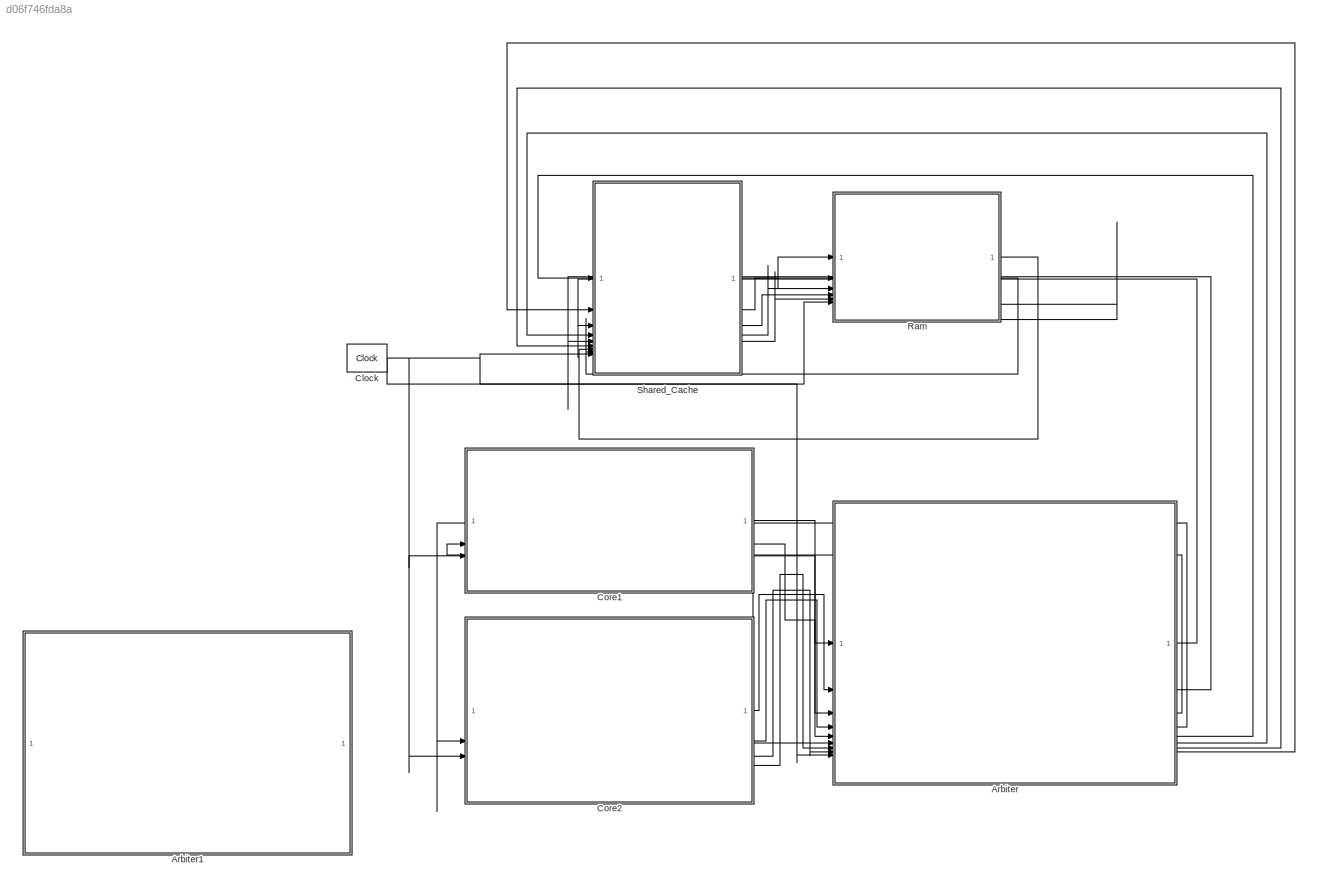
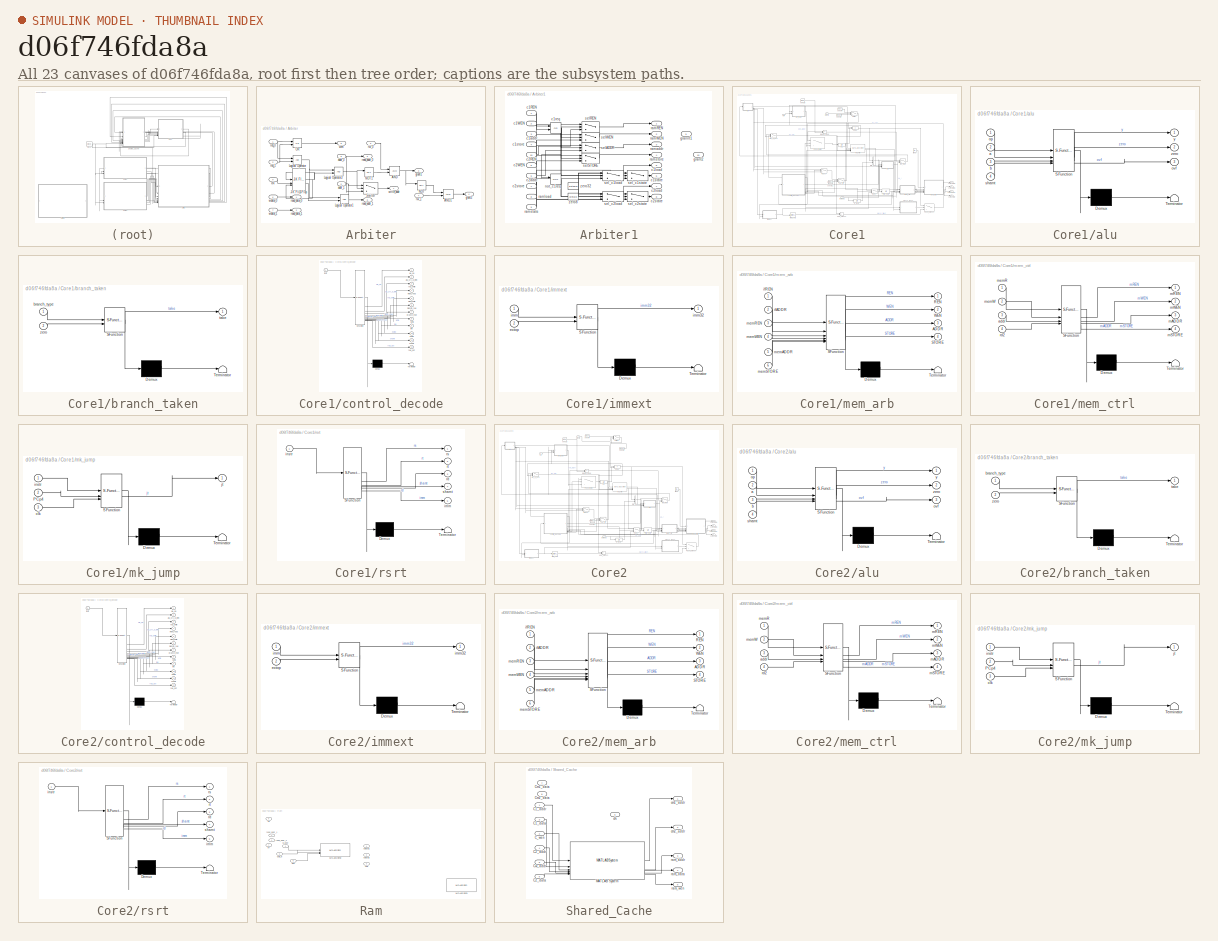
[diagram: thumbnail index - all 23 canvases of the model, root first then tree order]
MODEL slx_d06f746fda8a
KIND model
CONFIG AbsTol = auto
CONFIG EnableMultiTasking = off
CONFIG FixedStep = 1
CONFIG MaxStep = auto
CONFIG MinStep = auto
CONFIG RelTol = 1e-3
CONFIG SampleTimeConstraint = Unconstrained
CONFIG SolverName = FixedStepDiscrete
CONFIG StartTime = 0
CONFIG StopTime = 200
BLOCK [SubSystem] Arbiter
BLOCK [Logic] Arbiter/AND
  AllPortsSameDT = off
  IconShape = distinctive
  OutDataTypeStr = boolean
BLOCK [Logic] Arbiter/AND1
  AllPortsSameDT = off
  IconShape = distinctive
  OutDataTypeStr = boolean
BLOCK [Reference] Arbiter/J-K Flip-Flop  REF=simulink_extras/Flip Flops/J-K
Flip-Flop
  SourceBlock = simulink_extras/Flip Flops/J-K\nFlip-Flop
  SourceType = JKFlipFlop
BLOCK [Logic] Arbiter/Logical Operator
  AllPortsSameDT = off
  OutDataTypeStr = boolean
BLOCK [Logic] Arbiter/Logical Operator1
  AllPortsSameDT = off
  OutDataTypeStr = boolean
BLOCK [Logic] Arbiter/Logical Operator3
  AllPortsSameDT = off
  OutDataTypeStr = boolean
BLOCK [Logic] Arbiter/NOT
  AllPortsSameDT = off
  IconShape = distinctive
  Operator = NOT
  OutDataTypeStr = boolean
BLOCK [Logic] Arbiter/NOT1
  AllPortsSameDT = off
  IconShape = distinctive
  Operator = NOT
  OutDataTypeStr = boolean
BLOCK [Logic] Arbiter/OR
  AllPortsSameDT = off
  IconShape = distinctive
  Operator = OR
  OutDataTypeStr = boolean
BLOCK [Switch] Arbiter/Switch
  Criteria = u2 > Threshold
  InputSameDT = off
  SaturateOnIntegerOverflow = off
BLOCK [Inport] Arbiter/addr_0
  Port = 8
BLOCK [Inport] Arbiter/addr_1
  NameLocation = left
  Port = 5
BLOCK [Inport] Arbiter/clk
  Port = 9
BLOCK [Outport] Arbiter/grant1
  NameLocation = right
  Port = 3
BLOCK [Outport] Arbiter/grant2
  NameLocation = right
  Port = 4
BLOCK [Outport] Arbiter/read_addr_0
  Port = 5
BLOCK [Outport] Arbiter/read_addr_1
  Port = 6
BLOCK [Outport] Arbiter/read_data_0
BLOCK [Outport] Arbiter/read_data_1
  Port = 2
BLOCK [Inport] Arbiter/req_0
BLOCK [Inport] Arbiter/req_1
  Port = 2
BLOCK [Inport] Arbiter/rw_0
  Port = 3
BLOCK [Inport] Arbiter/rw_1
  Port = 4
BLOCK [Inport] Arbiter/wdata_0
  Port = 6
BLOCK [Inport] Arbiter/wdata_1
  Port = 7
BLOCK [Outport] Arbiter/wen
  Port = 8
BLOCK [Outport] Arbiter/write_addr
  Port = 7
BLOCK [SubSystem] Arbiter1
BLOCK [Inport] Arbiter1/c1REN
BLOCK [Inport] Arbiter1/c1WEN
  Port = 2
BLOCK [Inport] Arbiter1/c1addr
  Port = 3
BLOCK [Outport] Arbiter1/c1load
  Port = 5
BLOCK [Logic] Arbiter1/c1req
  AllPortsSameDT = off
  Operator = OR
  OutDataTypeStr = boolean
BLOCK [Outport] Arbiter1/c1state
  Port = 6
BLOCK [Inport] Arbiter1/c1store
  Port = 4
BLOCK [Inport] Arbiter1/c2REN
  Port = 10
BLOCK [Inport] Arbiter1/c2WEN
  Port = 5
BLOCK [Inport] Arbiter1/c2addr
  Port = 6
BLOCK [Outport] Arbiter1/c2load
  Port = 7
BLOCK [Outport] Arbiter1/c2state
  Port = 8
BLOCK [Inport] Arbiter1/c2store
  Port = 7
BLOCK [Outport] Arbiter1/grannt1
  Port = 9
BLOCK [Outport] Arbiter1/grant2
  Port = 10
BLOCK [Logic] Arbiter1/not_c1req
  AllPortsSameDT = off
  Operator = NOT
  OutDataTypeStr = boolean
BLOCK [Outport] Arbiter1/ramREN
BLOCK [Outport] Arbiter1/ramWEN
  Port = 2
BLOCK [Outport] Arbiter1/ramaddr
  Port = 3
BLOCK [Inport] Arbiter1/ramload
  Port = 8
BLOCK [Inport] Arbiter1/ramstate
  Port = 9
BLOCK [Outport] Arbiter1/ramstore
  Port = 4
BLOCK [Switch] Arbiter1/selADDR
  Criteria = u2 ~= 0
  InputSameDT = off
  SaturateOnIntegerOverflow = off
  Threshold = 0.5
BLOCK [Switch] Arbiter1/selREN
  Criteria = u2 ~= 0
  InputSameDT = off
  SaturateOnIntegerOverflow = off
  Threshold = 0.5
BLOCK [Switch] Arbiter1/selSTORE
  Criteria = u2 ~= 0
  InputSameDT = off
  SaturateOnIntegerOverflow = off
  Threshold = 0.5
BLOCK [Switch] Arbiter1/selWEN
  Criteria = u2 ~= 0
  InputSameDT = off
  SaturateOnIntegerOverflow = off
  Threshold = 0.5
BLOCK [Switch] Arbiter1/sel_c1load
  Criteria = u2 ~= 0
  InputSameDT = off
  SaturateOnIntegerOverflow = off
  Threshold = 0.5
BLOCK [Switch] Arbiter1/sel_c1state
  Criteria = u2 ~= 0
  InputSameDT = off
  SaturateOnIntegerOverflow = off
  Threshold = 0.5
BLOCK [Switch] Arbiter1/sel_c2load
  Criteria = u2 ~= 0
  InputSameDT = off
  SaturateOnIntegerOverflow = off
  Threshold = 0.5
BLOCK [Switch] Arbiter1/sel_c2state
  Criteria = u2 ~= 0
  InputSameDT = off
  SaturateOnIntegerOverflow = off
  Threshold = 0.5
BLOCK [Constant] Arbiter1/zero32
  Value = uint32(0)
BLOCK [Constant] Arbiter1/zero8
  Value = uint8(0)
BLOCK [Reference] Clock  REF=simulink_extras/Flip Flops/Clock
  SourceBlock = simulink_extras/Flip Flops/Clock
  SourceType = Digital clock
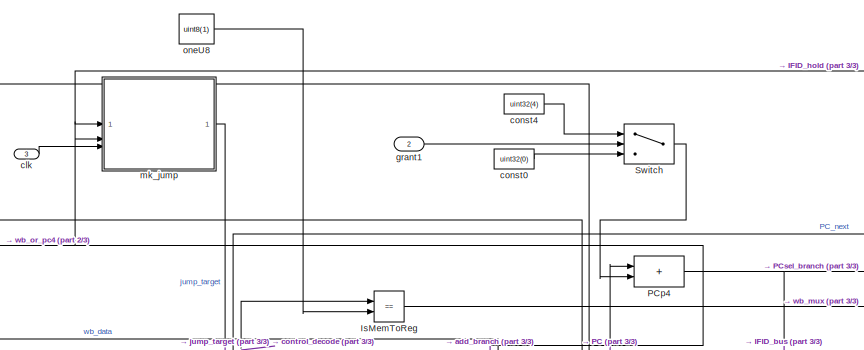
[diagram: Core1 - part 1/3, top center region]
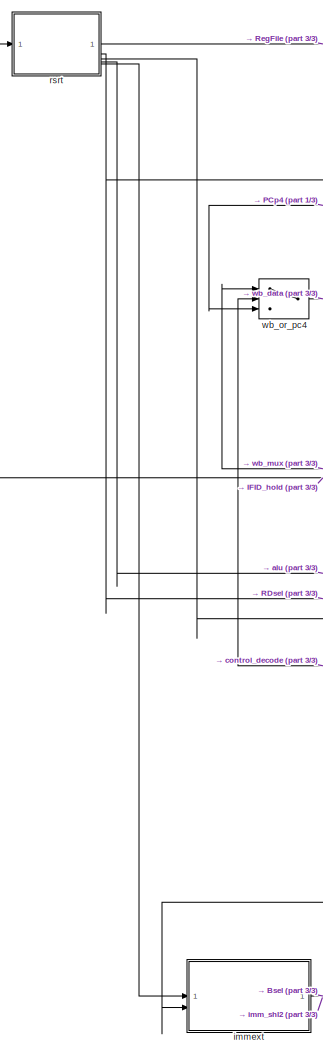
[diagram: Core1 - part 2/3, left side, full height]
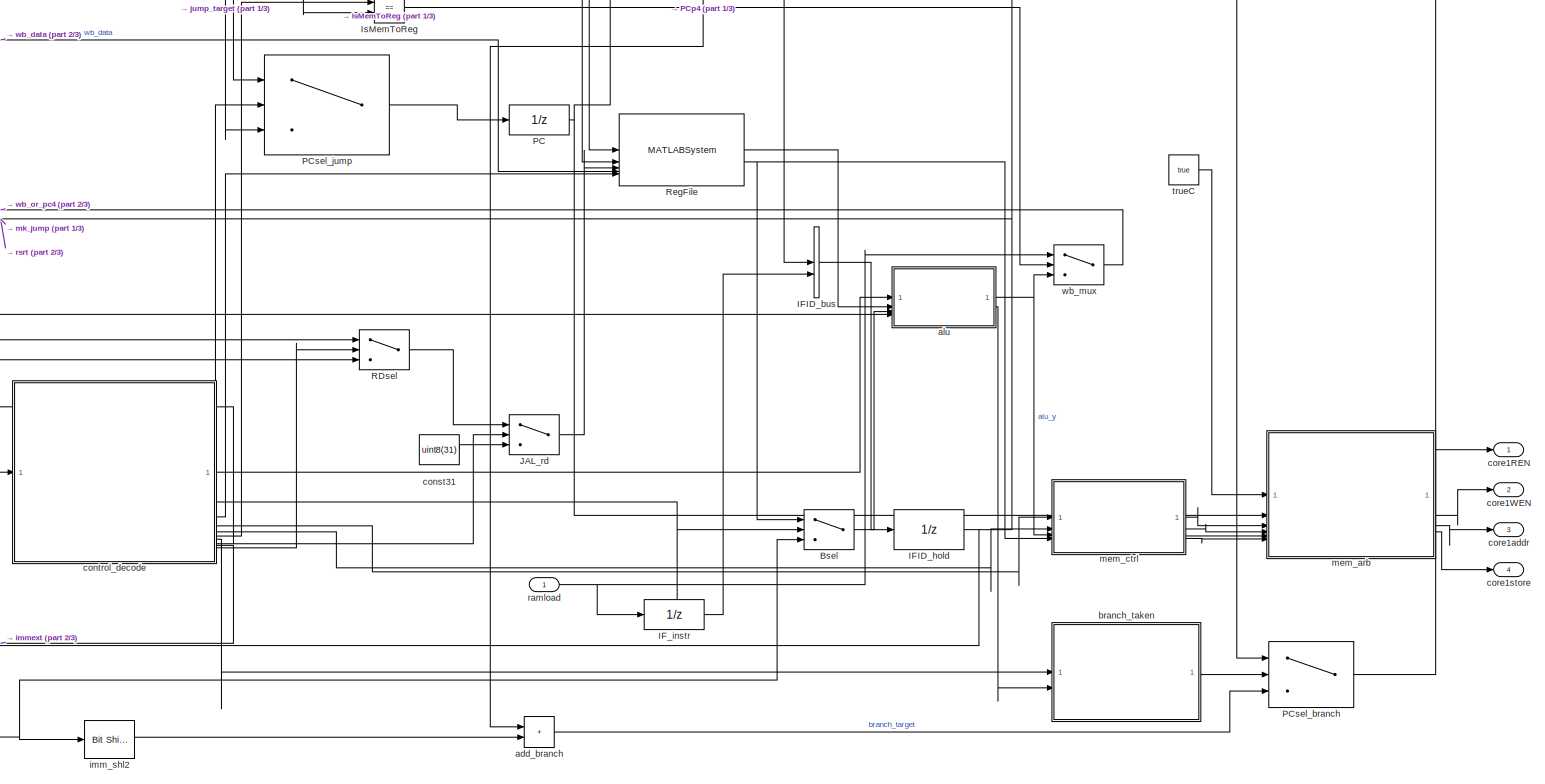
[diagram: Core1 - part 3/3, full width, middle band]
BLOCK [SubSystem] Core1
BLOCK [Switch] Core1/Bsel
  Criteria = u2 ~= 0
  InputSameDT = off
  SaturateOnIntegerOverflow = off
BLOCK [BusCreator] Core1/IFID_bus
  DisplayOption = bar
  InheritFromInputs = on
  Inputs = 2
BLOCK [UnitDelay] Core1/IFID_hold
  HasFrameUpgradeWarning = on
  SampleTime = -1
BLOCK [UnitDelay] Core1/IF_instr
  HasFrameUpgradeWarning = on
  SampleTime = -1
BLOCK [RelationalOperator] Core1/IsMemToReg
  InputSameDT = off
  Operator = ==
  OutDataTypeStr = boolean
  RndMeth = Simplest
BLOCK [Switch] Core1/JAL_rd
  Criteria = u2 ~= 0
  InputSameDT = off
  SaturateOnIntegerOverflow = off
BLOCK [UnitDelay] Core1/PC
  HasFrameUpgradeWarning = on
  SampleTime = -1
BLOCK [Sum] Core1/PCp4
  IconShape = rectangular
BLOCK [Switch] Core1/PCsel_branch
  Criteria = u2 ~= 0
  InputSameDT = off
  SaturateOnIntegerOverflow = off
BLOCK [Switch] Core1/PCsel_jump
  Criteria = u2 ~= 0
  InputSameDT = off
  SaturateOnIntegerOverflow = off
BLOCK [Switch] Core1/RDsel
  Criteria = u2 ~= 0
  InputSameDT = off
  SaturateOnIntegerOverflow = off
BLOCK [MATLABSystem] Core1/RegFile
  MaskType = RegFileSys
  SimulateUsing = Code generation
  System = RegFileSys
BLOCK [Switch] Core1/Switch
  Criteria = u2 ~= 0
  InputSameDT = off
  SaturateOnIntegerOverflow = off
BLOCK [Sum] Core1/add_branch
  IconShape = rectangular
BLOCK [SubSystem] Core1/alu
  ErrorFcn = Stateflow.Translate.translate
  PermitHierarchicalResolution = ExplicitOnly
  SFBlockType = MATLAB Function
  TreatAsAtomicUnit = on
BLOCK [Demux] Core1/alu/ Demux 
  Outputs = 1
BLOCK [S-Function] Core1/alu/ SFunction 
  EnableBusSupport = off
  FunctionName = sf_sfun
  PortCounts = [4 4]
  SFcnIsStateOwnerBlock = off
  SFunctionDeploymentMode = off
  Tag = Stateflow S-Function 1
BLOCK [Terminator] Core1/alu/ Terminator 
BLOCK [Inport] Core1/alu/a
  Port = 2
BLOCK [Inport] Core1/alu/b
  Port = 3
BLOCK [Inport] Core1/alu/op
BLOCK [Outport] Core1/alu/ovf
  Port = 3
BLOCK [Inport] Core1/alu/shamt
  Port = 4
BLOCK [Outport] Core1/alu/y
BLOCK [Outport] Core1/alu/zero
  Port = 2
BLOCK [SubSystem] Core1/branch_taken
  ErrorFcn = Stateflow.Translate.translate
  PermitHierarchicalResolution = ExplicitOnly
  SFBlockType = MATLAB Function
  TreatAsAtomicUnit = on
BLOCK [Demux] Core1/branch_taken/ Demux 
  Outputs = 1
BLOCK [S-Function] Core1/branch_taken/ SFunction 
  EnableBusSupport = off
  FunctionName = sf_sfun
  PortCounts = [2 2]
  SFcnIsStateOwnerBlock = off
  SFunctionDeploymentMode = off
  Tag = Stateflow S-Function 7
BLOCK [Terminator] Core1/branch_taken/ Terminator 
BLOCK [Inport] Core1/branch_taken/branch_type
BLOCK [Outport] Core1/branch_taken/take
BLOCK [Inport] Core1/branch_taken/zero
  Port = 2
BLOCK [Inport] Core1/clk
  Port = 3
BLOCK [Constant] Core1/const0
  Value = uint32(0)
BLOCK [Constant] Core1/const31
  Value = uint8(31)
BLOCK [Constant] Core1/const4
  Value = uint32(4)
BLOCK [SubSystem] Core1/control_decode
  ErrorFcn = Stateflow.Translate.translate
  PermitHierarchicalResolution = ExplicitOnly
  SFBlockType = MATLAB Function
  TreatAsAtomicUnit = on
BLOCK [Demux] Core1/control_decode/ Demux 
  Outputs = 1
BLOCK [S-Function] Core1/control_decode/ SFunction 
  EnableBusSupport = off
  FunctionName = sf_sfun
  PortCounts = [1 13]
  SFcnIsStateOwnerBlock = off
  SFunctionDeploymentMode = off
  Tag = Stateflow S-Function 2
BLOCK [Terminator] Core1/control_decode/ Terminator 
BLOCK [Outport] Core1/control_decode/alu_op
BLOCK [Outport] Core1/control_decode/alu_src_b_imm
  Port = 2
BLOCK [Outport] Core1/control_decode/branch_type
  Port = 7
BLOCK [Outport] Core1/control_decode/extop
  Port = 10
BLOCK [Inport] Core1/control_decode/instr
BLOCK [Outport] Core1/control_decode/jump
  Port = 8
BLOCK [Outport] Core1/control_decode/link
  Port = 9
BLOCK [Outport] Core1/control_decode/mem_read
  Port = 4
BLOCK [Outport] Core1/control_decode/mem_to_reg
  Port = 6
BLOCK [Outport] Core1/control_decode/mem_write
  Port = 5
BLOCK [Outport] Core1/control_decode/reg_dst
  Port = 12
BLOCK [Outport] Core1/control_decode/reg_write
  Port = 3
BLOCK [Outport] Core1/control_decode/shamt
  Port = 11
BLOCK [Outport] Core1/core1REN
BLOCK [Outport] Core1/core1WEN
  Port = 2
BLOCK [Outport] Core1/core1addr
  Port = 3
BLOCK [Outport] Core1/core1store
  Port = 4
BLOCK [Inport] Core1/grant1
  Port = 2
BLOCK [Reference] Core1/imm_shl2  REF=hdlsllib/Logic and Bit
Operations/Bit Shift
  SourceBlock = hdlsllib/Logic and Bit\nOperations/Bit Shift
  SourceType = Bit Shift
BLOCK [SubSystem] Core1/immext
  ErrorFcn = Stateflow.Translate.translate
  PermitHierarchicalResolution = ExplicitOnly
  SFBlockType = MATLAB Function
  TreatAsAtomicUnit = on
BLOCK [Demux] Core1/immext/ Demux 
  Outputs = 1
BLOCK [S-Function] Core1/immext/ SFunction 
  EnableBusSupport = off
  FunctionName = sf_sfun
  PortCounts = [2 2]
  SFcnIsStateOwnerBlock = off
  SFunctionDeploymentMode = off
  Tag = Stateflow S-Function 4
BLOCK [Terminator] Core1/immext/ Terminator 
BLOCK [Inport] Core1/immext/extop
  Port = 2
BLOCK [Inport] Core1/immext/imm
BLOCK [Outport] Core1/immext/imm32
BLOCK [SubSystem] Core1/mem_arb
  ErrorFcn = Stateflow.Translate.translate
  PermitHierarchicalResolution = ExplicitOnly
  SFBlockType = MATLAB Function
  TreatAsAtomicUnit = on
BLOCK [Demux] Core1/mem_arb/ Demux 
  Outputs = 1
BLOCK [S-Function] Core1/mem_arb/ SFunction 
  EnableBusSupport = off
  FunctionName = sf_sfun
  PortCounts = [6 5]
  SFcnIsStateOwnerBlock = off
  SFunctionDeploymentMode = off
  Tag = Stateflow S-Function 6
BLOCK [Terminator] Core1/mem_arb/ Terminator 
BLOCK [Outport] Core1/mem_arb/ADDR
  Port = 3
BLOCK [Outport] Core1/mem_arb/REN
BLOCK [Outport] Core1/mem_arb/STORE
  Port = 4
BLOCK [Outport] Core1/mem_arb/WEN
  Port = 2
BLOCK [Inport] Core1/mem_arb/ifADDR
  Port = 2
BLOCK [Inport] Core1/mem_arb/ifREN
BLOCK [Inport] Core1/mem_arb/memADDR
  Port = 5
BLOCK [Inport] Core1/mem_arb/memREN
  Port = 3
BLOCK [Inport] Core1/mem_arb/memSTORE
  Port = 6
BLOCK [Inport] Core1/mem_arb/memWEN
  Port = 4
BLOCK [SubSystem] Core1/mem_ctrl
  ErrorFcn = Stateflow.Translate.translate
  PermitHierarchicalResolution = ExplicitOnly
  SFBlockType = MATLAB Function
  TreatAsAtomicUnit = on
BLOCK [Demux] Core1/mem_ctrl/ Demux 
  Outputs = 1
BLOCK [S-Function] Core1/mem_ctrl/ SFunction 
  EnableBusSupport = off
  FunctionName = sf_sfun
  PortCounts = [4 5]
  SFcnIsStateOwnerBlock = off
  SFunctionDeploymentMode = off
  Tag = Stateflow S-Function 5
BLOCK [Terminator] Core1/mem_ctrl/ Terminator 
BLOCK [Inport] Core1/mem_ctrl/addr
  Port = 3
BLOCK [Outport] Core1/mem_ctrl/mADDR
  Port = 3
BLOCK [Outport] Core1/mem_ctrl/mREN
BLOCK [Outport] Core1/mem_ctrl/mSTORE
  Port = 4
BLOCK [Outport] Core1/mem_ctrl/mWEN
  Port = 2
BLOCK [Inport] Core1/mem_ctrl/memR
BLOCK [Inport] Core1/mem_ctrl/memW
  Port = 2
BLOCK [Inport] Core1/mem_ctrl/rd2
  Port = 4
BLOCK [SubSystem] Core1/mk_jump
  ErrorFcn = Stateflow.Translate.translate
  PermitHierarchicalResolution = ExplicitOnly
  SFBlockType = MATLAB Function
  TreatAsAtomicUnit = on
BLOCK [Demux] Core1/mk_jump/ Demux 
  Outputs = 1
BLOCK [S-Function] Core1/mk_jump/ SFunction 
  EnableBusSupport = off
  FunctionName = sf_sfun
  PortCounts = [3 2]
  SFcnIsStateOwnerBlock = off
  SFunctionDeploymentMode = off
  Tag = Stateflow S-Function 8
BLOCK [Terminator] Core1/mk_jump/ Terminator 
BLOCK [Inport] Core1/mk_jump/PCp4
  Port = 2
BLOCK [Inport] Core1/mk_jump/clk
  Port = 3
BLOCK [Inport] Core1/mk_jump/instr
BLOCK [Outport] Core1/mk_jump/jt
BLOCK [Constant] Core1/oneU8
  Value = uint8(1)
BLOCK [Inport] Core1/ramload
BLOCK [SubSystem] Core1/rsrt
  ErrorFcn = Stateflow.Translate.translate
  PermitHierarchicalResolution = ExplicitOnly
  SFBlockType = MATLAB Function
  TreatAsAtomicUnit = on
BLOCK [Demux] Core1/rsrt/ Demux 
  Outputs = 1
BLOCK [S-Function] Core1/rsrt/ SFunction 
  EnableBusSupport = off
  FunctionName = sf_sfun
  PortCounts = [1 6]
  SFcnIsStateOwnerBlock = off
  SFunctionDeploymentMode = off
  Tag = Stateflow S-Function 3
BLOCK [Terminator] Core1/rsrt/ Terminator 
BLOCK [Outport] Core1/rsrt/imm
  Port = 5
BLOCK [Inport] Core1/rsrt/instr
BLOCK [Outport] Core1/rsrt/rd
  Port = 3
BLOCK [Outport] Core1/rsrt/rs
BLOCK [Outport] Core1/rsrt/rt
  Port = 2
BLOCK [Outport] Core1/rsrt/shamt
  Port = 4
BLOCK [Constant] Core1/trueC
  Value = true
BLOCK [Switch] Core1/wb_mux
  Criteria = u2 ~= 0
  InputSameDT = off
  SaturateOnIntegerOverflow = off
BLOCK [Switch] Core1/wb_or_pc4
  Criteria = u2 ~= 0
  InputSameDT = off
  SaturateOnIntegerOverflow = off
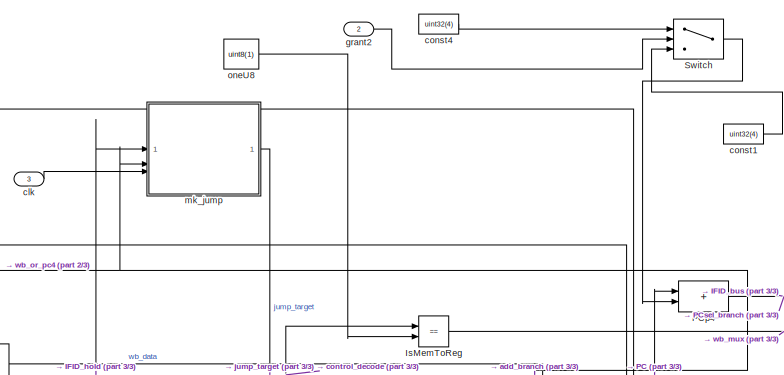
[diagram: Core2 - part 1/3, top center region]
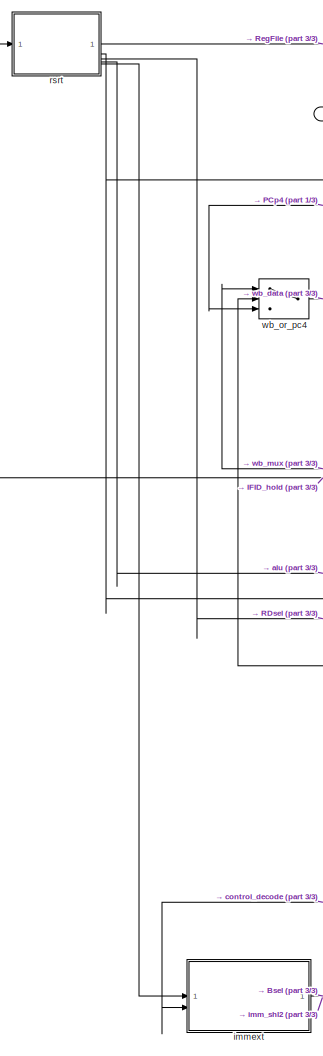
[diagram: Core2 - part 2/3, left side, full height]
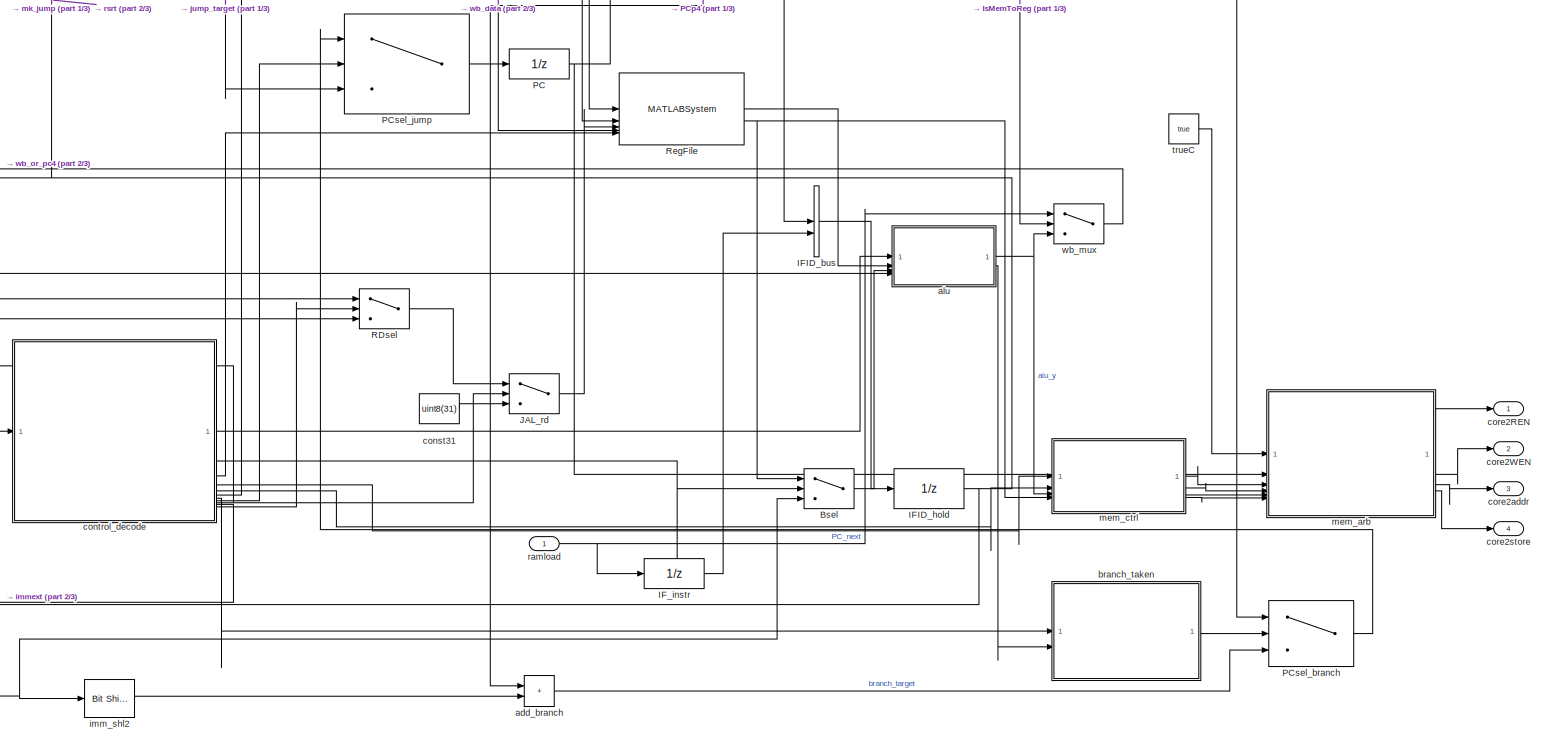
[diagram: Core2 - part 3/3, full width, middle band]
BLOCK [SubSystem] Core2
BLOCK [Switch] Core2/Bsel
  Criteria = u2 ~= 0
  InputSameDT = off
  SaturateOnIntegerOverflow = off
BLOCK [BusCreator] Core2/IFID_bus
  DisplayOption = bar
  InheritFromInputs = on
  Inputs = 2
BLOCK [UnitDelay] Core2/IFID_hold
  HasFrameUpgradeWarning = on
  SampleTime = -1
BLOCK [UnitDelay] Core2/IF_instr
  HasFrameUpgradeWarning = on
  SampleTime = -1
BLOCK [RelationalOperator] Core2/IsMemToReg
  InputSameDT = off
  Operator = ==
  OutDataTypeStr = boolean
  RndMeth = Simplest
BLOCK [Switch] Core2/JAL_rd
  Criteria = u2 ~= 0
  InputSameDT = off
  SaturateOnIntegerOverflow = off
BLOCK [UnitDelay] Core2/PC
  HasFrameUpgradeWarning = on
  SampleTime = -1
BLOCK [Sum] Core2/PCp4
  IconShape = rectangular
BLOCK [Switch] Core2/PCsel_branch
  Criteria = u2 ~= 0
  InputSameDT = off
  SaturateOnIntegerOverflow = off
BLOCK [Switch] Core2/PCsel_jump
  Criteria = u2 ~= 0
  InputSameDT = off
  SaturateOnIntegerOverflow = off
BLOCK [Switch] Core2/RDsel
  Criteria = u2 ~= 0
  InputSameDT = off
  SaturateOnIntegerOverflow = off
BLOCK [MATLABSystem] Core2/RegFile
  MaskType = RegFileSys
  SimulateUsing = Code generation
  System = RegFileSys
BLOCK [Switch] Core2/Switch
  Criteria = u2 > Threshold
  InputSameDT = off
  SaturateOnIntegerOverflow = off
BLOCK [Sum] Core2/add_branch
  IconShape = rectangular
BLOCK [SubSystem] Core2/alu
  ErrorFcn = Stateflow.Translate.translate
  PermitHierarchicalResolution = ExplicitOnly
  SFBlockType = MATLAB Function
  TreatAsAtomicUnit = on
BLOCK [Demux] Core2/alu/ Demux 
  Outputs = 1
BLOCK [S-Function] Core2/alu/ SFunction 
  EnableBusSupport = off
  FunctionName = sf_sfun
  PortCounts = [4 4]
  SFcnIsStateOwnerBlock = off
  SFunctionDeploymentMode = off
  Tag = Stateflow S-Function 9
BLOCK [Terminator] Core2/alu/ Terminator 
BLOCK [Inport] Core2/alu/a
  Port = 2
BLOCK [Inport] Core2/alu/b
  Port = 3
BLOCK [Inport] Core2/alu/op
BLOCK [Outport] Core2/alu/ovf
  Port = 3
BLOCK [Inport] Core2/alu/shamt
  Port = 4
BLOCK [Outport] Core2/alu/y
BLOCK [Outport] Core2/alu/zero
  Port = 2
BLOCK [SubSystem] Core2/branch_taken
  ErrorFcn = Stateflow.Translate.translate
  PermitHierarchicalResolution = ExplicitOnly
  SFBlockType = MATLAB Function
  TreatAsAtomicUnit = on
BLOCK [Demux] Core2/branch_taken/ Demux 
  Outputs = 1
BLOCK [S-Function] Core2/branch_taken/ SFunction 
  EnableBusSupport = off
  FunctionName = sf_sfun
  PortCounts = [2 2]
  SFcnIsStateOwnerBlock = off
  SFunctionDeploymentMode = off
  Tag = Stateflow S-Function 10
BLOCK [Terminator] Core2/branch_taken/ Terminator 
BLOCK [Inport] Core2/branch_taken/branch_type
BLOCK [Outport] Core2/branch_taken/take
BLOCK [Inport] Core2/branch_taken/zero
  Port = 2
BLOCK [Inport] Core2/clk
  Port = 3
BLOCK [Constant] Core2/const1
  Value = uint32(4)
BLOCK [Constant] Core2/const31
  Value = uint8(31)
BLOCK [Constant] Core2/const4
  Value = uint32(4)
BLOCK [SubSystem] Core2/control_decode
  ErrorFcn = Stateflow.Translate.translate
  PermitHierarchicalResolution = ExplicitOnly
  SFBlockType = MATLAB Function
  TreatAsAtomicUnit = on
BLOCK [Demux] Core2/control_decode/ Demux 
  Outputs = 1
BLOCK [S-Function] Core2/control_decode/ SFunction 
  EnableBusSupport = off
  FunctionName = sf_sfun
  PortCounts = [1 13]
  SFcnIsStateOwnerBlock = off
  SFunctionDeploymentMode = off
  Tag = Stateflow S-Function 11
BLOCK [Terminator] Core2/control_decode/ Terminator 
BLOCK [Outport] Core2/control_decode/alu_op
BLOCK [Outport] Core2/control_decode/alu_src_b_imm
  Port = 2
BLOCK [Outport] Core2/control_decode/branch_type
  Port = 7
BLOCK [Outport] Core2/control_decode/extop
  Port = 10
BLOCK [Inport] Core2/control_decode/instr
BLOCK [Outport] Core2/control_decode/jump
  Port = 8
BLOCK [Outport] Core2/control_decode/link
  Port = 9
BLOCK [Outport] Core2/control_decode/mem_read
  Port = 4
BLOCK [Outport] Core2/control_decode/mem_to_reg
  Port = 6
BLOCK [Outport] Core2/control_decode/mem_write
  Port = 5
BLOCK [Outport] Core2/control_decode/reg_dst
  Port = 12
BLOCK [Outport] Core2/control_decode/reg_write
  Port = 3
BLOCK [Outport] Core2/control_decode/shamt
  Port = 11
BLOCK [Outport] Core2/core2REN
BLOCK [Outport] Core2/core2WEN
  Port = 2
BLOCK [Outport] Core2/core2addr
  Port = 3
BLOCK [Outport] Core2/core2store
  Port = 4
BLOCK [Inport] Core2/grant2
  Port = 2
BLOCK [Reference] Core2/imm_shl2  REF=hdlsllib/Logic and Bit
Operations/Bit Shift
  SourceBlock = hdlsllib/Logic and Bit\nOperations/Bit Shift
  SourceType = Bit Shift
BLOCK [SubSystem] Core2/immext
  ErrorFcn = Stateflow.Translate.translate
  PermitHierarchicalResolution = ExplicitOnly
  SFBlockType = MATLAB Function
  TreatAsAtomicUnit = on
BLOCK [Demux] Core2/immext/ Demux 
  Outputs = 1
BLOCK [S-Function] Core2/immext/ SFunction 
  EnableBusSupport = off
  FunctionName = sf_sfun
  PortCounts = [2 2]
  SFcnIsStateOwnerBlock = off
  SFunctionDeploymentMode = off
  Tag = Stateflow S-Function 12
BLOCK [Terminator] Core2/immext/ Terminator 
BLOCK [Inport] Core2/immext/extop
  Port = 2
BLOCK [Inport] Core2/immext/imm
BLOCK [Outport] Core2/immext/imm32
BLOCK [SubSystem] Core2/mem_arb
  ErrorFcn = Stateflow.Translate.translate
  PermitHierarchicalResolution = ExplicitOnly
  SFBlockType = MATLAB Function
  TreatAsAtomicUnit = on
BLOCK [Demux] Core2/mem_arb/ Demux 
  Outputs = 1
BLOCK [S-Function] Core2/mem_arb/ SFunction 
  EnableBusSupport = off
  FunctionName = sf_sfun
  PortCounts = [6 5]
  SFcnIsStateOwnerBlock = off
  SFunctionDeploymentMode = off
  Tag = Stateflow S-Function 13
BLOCK [Terminator] Core2/mem_arb/ Terminator 
BLOCK [Outport] Core2/mem_arb/ADDR
  Port = 3
BLOCK [Outport] Core2/mem_arb/REN
BLOCK [Outport] Core2/mem_arb/STORE
  Port = 4
BLOCK [Outport] Core2/mem_arb/WEN
  Port = 2
BLOCK [Inport] Core2/mem_arb/ifADDR
  Port = 2
BLOCK [Inport] Core2/mem_arb/ifREN
BLOCK [Inport] Core2/mem_arb/memADDR
  Port = 5
BLOCK [Inport] Core2/mem_arb/memREN
  Port = 3
BLOCK [Inport] Core2/mem_arb/memSTORE
  Port = 6
BLOCK [Inport] Core2/mem_arb/memWEN
  Port = 4
BLOCK [SubSystem] Core2/mem_ctrl
  ErrorFcn = Stateflow.Translate.translate
  PermitHierarchicalResolution = ExplicitOnly
  SFBlockType = MATLAB Function
  TreatAsAtomicUnit = on
BLOCK [Demux] Core2/mem_ctrl/ Demux 
  Outputs = 1
BLOCK [S-Function] Core2/mem_ctrl/ SFunction 
  EnableBusSupport = off
  FunctionName = sf_sfun
  PortCounts = [4 5]
  SFcnIsStateOwnerBlock = off
  SFunctionDeploymentMode = off
  Tag = Stateflow S-Function 14
BLOCK [Terminator] Core2/mem_ctrl/ Terminator 
BLOCK [Inport] Core2/mem_ctrl/addr
  Port = 3
BLOCK [Outport] Core2/mem_ctrl/mADDR
  Port = 3
BLOCK [Outport] Core2/mem_ctrl/mREN
BLOCK [Outport] Core2/mem_ctrl/mSTORE
  Port = 4
BLOCK [Outport] Core2/mem_ctrl/mWEN
  Port = 2
BLOCK [Inport] Core2/mem_ctrl/memR
BLOCK [Inport] Core2/mem_ctrl/memW
  Port = 2
BLOCK [Inport] Core2/mem_ctrl/rd2
  Port = 4
BLOCK [SubSystem] Core2/mk_jump
  ErrorFcn = Stateflow.Translate.translate
  PermitHierarchicalResolution = ExplicitOnly
  SFBlockType = MATLAB Function
  TreatAsAtomicUnit = on
BLOCK [Demux] Core2/mk_jump/ Demux 
  Outputs = 1
BLOCK [S-Function] Core2/mk_jump/ SFunction 
  EnableBusSupport = off
  FunctionName = sf_sfun
  PortCounts = [3 2]
  SFcnIsStateOwnerBlock = off
  SFunctionDeploymentMode = off
  Tag = Stateflow S-Function 15
BLOCK [Terminator] Core2/mk_jump/ Terminator 
BLOCK [Inport] Core2/mk_jump/PCp4
  Port = 2
BLOCK [Inport] Core2/mk_jump/clk
  Port = 3
BLOCK [Inport] Core2/mk_jump/instr
BLOCK [Outport] Core2/mk_jump/jt
BLOCK [Constant] Core2/oneU8
  Value = uint8(1)
BLOCK [Inport] Core2/ramload
BLOCK [SubSystem] Core2/rsrt
  ErrorFcn = Stateflow.Translate.translate
  PermitHierarchicalResolution = ExplicitOnly
  SFBlockType = MATLAB Function
  TreatAsAtomicUnit = on
BLOCK [Demux] Core2/rsrt/ Demux 
  Outputs = 1
BLOCK [S-Function] Core2/rsrt/ SFunction 
  EnableBusSupport = off
  FunctionName = sf_sfun
  PortCounts = [1 6]
  SFcnIsStateOwnerBlock = off
  SFunctionDeploymentMode = off
  Tag = Stateflow S-Function 16
BLOCK [Terminator] Core2/rsrt/ Terminator 
BLOCK [Outport] Core2/rsrt/imm
  Port = 5
BLOCK [Inport] Core2/rsrt/instr
BLOCK [Outport] Core2/rsrt/rd
  Port = 3
BLOCK [Outport] Core2/rsrt/rs
BLOCK [Outport] Core2/rsrt/rt
  Port = 2
BLOCK [Outport] Core2/rsrt/shamt
  Port = 4
BLOCK [Constant] Core2/trueC
  Value = true
BLOCK [Switch] Core2/wb_mux
  Criteria = u2 ~= 0
  InputSameDT = off
  SaturateOnIntegerOverflow = off
BLOCK [Switch] Core2/wb_or_pc4
  Criteria = u2 ~= 0
  InputSameDT = off
  SaturateOnIntegerOverflow = off
BLOCK [SubSystem] Ram
  PortSchema = {"entries":[{"content":{"sides":[{"content":{"connectorIds":["In1","In2","In3","In4","In5","In6"]},"type":"ConnectorPlacement.EquallySpacedRectSide","uuid":"e4753198-88eb-4d8c-8163-319740d05159"},{"content":{"connectorIds":["Out1","In7","Out2"],"side":"RIGHT"},"type":"ConnectorPlacement.EquallySpacedRectSide","uuid":"9705e5dc-da62-4ef6-ad04-f47eaed09c48"},{"content":{"side":"TOP"},"type":"Connecto...<+415ch>
BLOCK [Inport] Ram/In7
  Port = 7
BLOCK [MATLABSystem] Ram/MATLAB System1
  MaskType = RAMSys
  Mem = zeros( 1024, 1, 'uint32' )
  SimulateUsing = Code generation
  System = RAMSys
BLOCK [MATLABSystem] Ram/MATLAB System2
  MaskType = RAMSys
  Mem = zeros( 1024, 1, 'uint32' )
  SimulateUsing = Code generation
  System = RAMSys
BLOCK [Outport] Ram/Out3
  Port = 3
BLOCK [Inport] Ram/clk
  Port = 6
BLOCK [Inport] Ram/data_in
  Port = 3
BLOCK [Outport] Ram/dataout 1
BLOCK [Outport] Ram/dataout 2
  Port = 2
BLOCK [Inport] Ram/read_addr_1
BLOCK [Inport] Ram/read_addr_2
  Port = 2
BLOCK [Inport] Ram/w_addr
  Port = 4
BLOCK [Inport] Ram/wen
  Port = 5
BLOCK [SubSystem] Shared_Cache
BLOCK [Inport] Shared_Cache/C1_addr
BLOCK [Inport] Shared_Cache/C1_data
  Port = 3
BLOCK [Inport] Shared_Cache/C2_addr
  Port = 4
BLOCK [Inport] Shared_Cache/C2_data
  Port = 5
BLOCK [Inport] Shared_Cache/C_wen
  Port = 2
BLOCK [Inport] Shared_Cache/Cm1_data
  Port = 7
BLOCK [Inport] Shared_Cache/Cm2_data
  Port = 8
BLOCK [Inport] Shared_Cache/Cw_addr
  Port = 6
BLOCK [MATLABSystem] Shared_Cache/MATLAB System
  CacheAddr = zeros( 64, 1, 'uint32' )
  CacheData = zeros( 64, 1, 'uint32' )
  Dirty = false( 64, 1 )
  MaskType = SharedCacheSys
  SimulateUsing = Code generation
  System = SharedCacheSys
  Valid = false( 64, 1 )
BLOCK [Inport] Shared_Cache/clk
  Port = 9
BLOCK [Outport] Shared_Cache/cm1_addr
BLOCK [Outport] Shared_Cache/cm2_addr
  Port = 2
BLOCK [Outport] Shared_Cache/ram_addr
  Port = 3
BLOCK [Outport] Shared_Cache/ram_data
  Port = 4
BLOCK [Outport] Shared_Cache/ram_wen
  Port = 5
LINE Arbiter/AND1:1 -> Arbiter/grant2:1
NET Arbiter/AND:1 -> Arbiter/NOT:1, Arbiter/grant1:1
NET Arbiter/J-K Flip-Flop:1 -> Arbiter/J-K Flip-Flop:1, Arbiter/J-K Flip-Flop:3, Arbiter/Logical Operator3:2
LINE Arbiter/J-K Flip-Flop:2 -> Arbiter/Logical Operator1:2
NET Arbiter/Logical Operator3:1 -> Arbiter/NOT1:1, Arbiter/Switch:2
NET Arbiter/Logical Operator:1 -> Arbiter/Logical Operator1:1, Arbiter/Logical Operator3:1
LINE Arbiter/NOT1:1 -> Arbiter/AND:2
LINE Arbiter/NOT:1 -> Arbiter/AND1:1
LINE Arbiter/OR:1 -> Arbiter/wen:1
LINE Arbiter/Switch:1 -> Arbiter/write_addr:1
NET Arbiter/addr_0:1 -> Arbiter/Switch:3, Arbiter/read_addr_0:1
NET Arbiter/addr_1:1 -> Arbiter/Switch:1, Arbiter/read_addr_1:1
LINE Arbiter/clk:1 -> Arbiter/J-K Flip-Flop:2
NET Arbiter/req_0:1 -> Arbiter/Logical Operator:1, Arbiter/OR:1
NET Arbiter/req_1:1 -> Arbiter/Logical Operator:2, Arbiter/OR:2
LINE Arbiter/rw_0:1 -> Arbiter/AND:1
LINE Arbiter/rw_1:1 -> Arbiter/AND1:2
LINE Arbiter/wdata_0:1 -> Arbiter/read_data_0:1
LINE Arbiter/wdata_1:1 -> Arbiter/read_data_1:1
NET Arbiter1/c1REN:1 -> Arbiter1/c1req:1, Arbiter1/selREN:1
NET Arbiter1/c1WEN:1 -> Arbiter1/c1req:2, Arbiter1/selWEN:1
LINE Arbiter1/c1addr:1 -> Arbiter1/selADDR:1
NET Arbiter1/c1req:1 -> Arbiter1/not_c1req:1, Arbiter1/selADDR:2, Arbiter1/selREN:2, Arbiter1/selSTORE:2, Arbiter1/selWEN:2, Arbiter1/sel_c1load:2, Arbiter1/sel_c1state:2
LINE Arbiter1/c1store:1 -> Arbiter1/selSTORE:1
LINE Arbiter1/c2REN:1 -> Arbiter1/selREN:3
LINE Arbiter1/c2WEN:1 -> Arbiter1/selWEN:3
LINE Arbiter1/c2addr:1 -> Arbiter1/selADDR:3
LINE Arbiter1/c2store:1 -> Arbiter1/selSTORE:3
NET Arbiter1/not_c1req:1 -> Arbiter1/sel_c2load:2, Arbiter1/sel_c2state:2
NET Arbiter1/ramload:1 -> Arbiter1/sel_c1load:3, Arbiter1/sel_c2load:3
NET Arbiter1/ramstate:1 -> Arbiter1/sel_c1state:3, Arbiter1/sel_c2state:3
LINE Arbiter1/selADDR:1 -> Arbiter1/ramaddr:1
LINE Arbiter1/selREN:1 -> Arbiter1/ramREN:1
LINE Arbiter1/selSTORE:1 -> Arbiter1/ramstore:1
LINE Arbiter1/selWEN:1 -> Arbiter1/ramWEN:1
LINE Arbiter1/sel_c1load:1 -> Arbiter1/c1load:1
LINE Arbiter1/sel_c1state:1 -> Arbiter1/c1state:1
LINE Arbiter1/sel_c2load:1 -> Arbiter1/c2load:1
LINE Arbiter1/sel_c2state:1 -> Arbiter1/c2state:1
NET Arbiter1/zero32:1 -> Arbiter1/sel_c1load:1, Arbiter1/sel_c2load:1
NET Arbiter1/zero8:1 -> Arbiter1/sel_c1state:1, Arbiter1/sel_c2state:1
LINE Arbiter:1 -> Shared_Cache:3
LINE Arbiter:2 -> Shared_Cache:5
LINE Arbiter:3 -> Core1:2
LINE Arbiter:4 -> Core2:2
LINE Arbiter:5 -> Shared_Cache:1
LINE Arbiter:6 -> Shared_Cache:4
LINE Arbiter:7 -> Shared_Cache:6
LINE Arbiter:8 -> Shared_Cache:2
NET Clock:1 -> Arbiter:9, Core1:3, Core2:3, Ram:6, Shared_Cache:9
LINE Core1/Bsel:1 -> Core1/alu:3
LINE Core1/IFID_bus:1 -> Core1/IFID_hold:1
NET Core1/IFID_hold:1 -> Core1/control_decode:1, Core1/mk_jump:1, Core1/rsrt:1
LINE Core1/IF_instr:1 -> Core1/IFID_bus:2
LINE Core1/IsMemToReg:1 -> Core1/wb_mux:2
LINE Core1/JAL_rd:1 -> Core1/RegFile:3
NET Core1/PC:1 -> Core1/PCp4:1, Core1/mem_arb:2
NET Core1/PCp4:1 -> Core1/IFID_bus:1, Core1/PCsel_branch:1, Core1/add_branch:1, Core1/mk_jump:2, Core1/wb_or_pc4:3
LINE Core1/PCsel_branch:1 -> Core1/PCsel_jump:1
LINE Core1/PCsel_jump:1 -> Core1/PC:1
LINE Core1/RDsel:1 -> Core1/JAL_rd:1
LINE Core1/RegFile:1 -> Core1/alu:2
NET Core1/RegFile:2 -> Core1/Bsel:1, Core1/mem_ctrl:4
LINE Core1/Switch:1 -> Core1/PCp4:2
LINE Core1/add_branch:1 -> Core1/PCsel_branch:3
NET Core1/alu:1 -> Core1/mem_ctrl:3, Core1/wb_mux:3
LINE Core1/alu:2 -> Core1/branch_taken:2
LINE Core1/branch_taken:1 -> Core1/PCsel_branch:2
LINE Core1/clk:1 -> Core1/mk_jump:3
LINE Core1/const0:1 -> Core1/Switch:3
LINE Core1/const31:1 -> Core1/JAL_rd:3
LINE Core1/const4:1 -> Core1/Switch:1
LINE Core1/control_decode:1 -> Core1/alu:1
LINE Core1/control_decode:10 -> Core1/immext:2
LINE Core1/control_decode:12 -> Core1/RDsel:2
LINE Core1/control_decode:2 -> Core1/Bsel:2
LINE Core1/control_decode:3 -> Core1/RegFile:5
LINE Core1/control_decode:4 -> Core1/mem_ctrl:1
LINE Core1/control_decode:5 -> Core1/mem_ctrl:2
LINE Core1/control_decode:6 -> Core1/IsMemToReg:1
LINE Core1/control_decode:7 -> Core1/branch_taken:1
LINE Core1/control_decode:8 -> Core1/PCsel_jump:2
NET Core1/control_decode:9 -> Core1/JAL_rd:2, Core1/wb_or_pc4:2
LINE Core1/grant1:1 -> Core1/Switch:2
LINE Core1/imm_shl2:1 -> Core1/add_branch:2
NET Core1/immext:1 -> Core1/Bsel:3, Core1/imm_shl2:1
LINE Core1/mem_arb:1 -> Core1/core1REN:1
LINE Core1/mem_arb:2 -> Core1/core1WEN:1
LINE Core1/mem_arb:3 -> Core1/core1addr:1
LINE Core1/mem_arb:4 -> Core1/core1store:1
LINE Core1/mem_ctrl:1 -> Core1/mem_arb:3
LINE Core1/mem_ctrl:2 -> Core1/mem_arb:4
LINE Core1/mem_ctrl:3 -> Core1/mem_arb:5
LINE Core1/mem_ctrl:4 -> Core1/mem_arb:6
LINE Core1/mk_jump:1 -> Core1/PCsel_jump:3
LINE Core1/oneU8:1 -> Core1/IsMemToReg:2
NET Core1/ramload:1 -> Core1/IF_instr:1, Core1/wb_mux:1
LINE Core1/rsrt:1 -> Core1/RegFile:1
NET Core1/rsrt:2 -> Core1/RDsel:1, Core1/RegFile:2
LINE Core1/rsrt:3 -> Core1/RDsel:3
LINE Core1/rsrt:4 -> Core1/alu:4
LINE Core1/rsrt:5 -> Core1/immext:1
LINE Core1/trueC:1 -> Core1/mem_arb:1
LINE Core1/wb_mux:1 -> Core1/wb_or_pc4:1
LINE Core1/wb_or_pc4:1 -> Core1/RegFile:4
LINE Core1:1 -> Arbiter:1
LINE Core1:2 -> Arbiter:3
LINE Core1:3 -> Arbiter:5
LINE Core1:4 -> Arbiter:6
LINE Core2/Bsel:1 -> Core2/alu:3
LINE Core2/IFID_bus:1 -> Core2/IFID_hold:1
NET Core2/IFID_hold:1 -> Core2/control_decode:1, Core2/mk_jump:1, Core2/rsrt:1
LINE Core2/IF_instr:1 -> Core2/IFID_bus:2
LINE Core2/IsMemToReg:1 -> Core2/wb_mux:2
LINE Core2/JAL_rd:1 -> Core2/RegFile:3
NET Core2/PC:1 -> Core2/PCp4:1, Core2/mem_arb:2
NET Core2/PCp4:1 -> Core2/IFID_bus:1, Core2/PCsel_branch:1, Core2/add_branch:1, Core2/mk_jump:2, Core2/wb_or_pc4:3
LINE Core2/PCsel_branch:1 -> Core2/PCsel_jump:1
LINE Core2/PCsel_jump:1 -> Core2/PC:1
LINE Core2/RDsel:1 -> Core2/JAL_rd:1
LINE Core2/RegFile:1 -> Core2/alu:2
NET Core2/RegFile:2 -> Core2/Bsel:1, Core2/mem_ctrl:4
LINE Core2/Switch:1 -> Core2/PCp4:2
LINE Core2/add_branch:1 -> Core2/PCsel_branch:3
NET Core2/alu:1 -> Core2/mem_ctrl:3, Core2/wb_mux:3
LINE Core2/alu:2 -> Core2/branch_taken:2
LINE Core2/branch_taken:1 -> Core2/PCsel_branch:2
LINE Core2/clk:1 -> Core2/mk_jump:3
LINE Core2/const1:1 -> Core2/Switch:3
LINE Core2/const31:1 -> Core2/JAL_rd:3
LINE Core2/const4:1 -> Core2/Switch:1
LINE Core2/control_decode:1 -> Core2/alu:1
LINE Core2/control_decode:10 -> Core2/immext:2
LINE Core2/control_decode:12 -> Core2/RDsel:2
LINE Core2/control_decode:2 -> Core2/Bsel:2
LINE Core2/control_decode:3 -> Core2/RegFile:5
LINE Core2/control_decode:4 -> Core2/mem_ctrl:1
LINE Core2/control_decode:5 -> Core2/mem_ctrl:2
LINE Core2/control_decode:6 -> Core2/IsMemToReg:1
LINE Core2/control_decode:7 -> Core2/branch_taken:1
LINE Core2/control_decode:8 -> Core2/PCsel_jump:2
NET Core2/control_decode:9 -> Core2/JAL_rd:2, Core2/wb_or_pc4:2
LINE Core2/grant2:1 -> Core2/Switch:2
LINE Core2/imm_shl2:1 -> Core2/add_branch:2
NET Core2/immext:1 -> Core2/Bsel:3, Core2/imm_shl2:1
LINE Core2/mem_arb:1 -> Core2/core2REN:1
LINE Core2/mem_arb:2 -> Core2/core2WEN:1
LINE Core2/mem_arb:3 -> Core2/core2addr:1
LINE Core2/mem_arb:4 -> Core2/core2store:1
LINE Core2/mem_ctrl:1 -> Core2/mem_arb:3
LINE Core2/mem_ctrl:2 -> Core2/mem_arb:4
LINE Core2/mem_ctrl:3 -> Core2/mem_arb:5
LINE Core2/mem_ctrl:4 -> Core2/mem_arb:6
LINE Core2/mk_jump:1 -> Core2/PCsel_jump:3
LINE Core2/oneU8:1 -> Core2/IsMemToReg:2
NET Core2/ramload:1 -> Core2/IF_instr:1, Core2/wb_mux:1
LINE Core2/rsrt:1 -> Core2/RegFile:1
NET Core2/rsrt:2 -> Core2/RDsel:1, Core2/RegFile:2
LINE Core2/rsrt:3 -> Core2/RDsel:3
LINE Core2/rsrt:4 -> Core2/alu:4
LINE Core2/rsrt:5 -> Core2/immext:1
LINE Core2/trueC:1 -> Core2/mem_arb:1
LINE Core2/wb_mux:1 -> Core2/wb_or_pc4:1
LINE Core2/wb_or_pc4:1 -> Core2/RegFile:4
LINE Core2:1 -> Arbiter:2
LINE Core2:2 -> Arbiter:4
LINE Core2:3 -> Arbiter:8
LINE Core2:4 -> Arbiter:7
LINE Ram/data_in:1 -> Ram/MATLAB System2:2
LINE Ram/w_addr:1 -> Ram/MATLAB System2:1
LINE Ram/wen:1 -> Ram/MATLAB System2:3
LINE Ram:1 -> Shared_Cache:7
LINE Ram:2 -> Shared_Cache:8
LINE Ram:3 -> Ram:7
LINE Shared_Cache/C1_addr:1 -> Shared_Cache/MATLAB System:1
LINE Shared_Cache/C1_data:1 -> Shared_Cache/MATLAB System:2
LINE Shared_Cache/C2_addr:1 -> Shared_Cache/MATLAB System:4
LINE Shared_Cache/C2_data:1 -> Shared_Cache/MATLAB System:6
LINE Shared_Cache/C_wen:1 -> Shared_Cache/MATLAB System:3
LINE Shared_Cache/Cw_addr:1 -> Shared_Cache/MATLAB System:5
LINE Shared_Cache/MATLAB System:1 -> Shared_Cache/cm1_addr:1
LINE Shared_Cache/MATLAB System:3 -> Shared_Cache/cm2_addr:1
LINE Shared_Cache/MATLAB System:5 -> Shared_Cache/ram_addr:1
LINE Shared_Cache/MATLAB System:6 -> Shared_Cache/ram_data:1
LINE Shared_Cache/MATLAB System:7 -> Shared_Cache/ram_wen:1
LINE Shared_Cache:1 -> Ram:1
LINE Shared_Cache:2 -> Ram:2
LINE Shared_Cache:3 -> Ram:4
LINE Shared_Cache:4 -> Ram:3
LINE Shared_Cache:5 -> Ram:5
note: NET lines group one-source signal fan-out (src -> all destinations, sorted); 1:1 wires keep LINE
CHART Core1/mk_jump states=1 transitions=1
  STATE_LABEL 'eML_blk_kernel()'
  STATE_LABEL "SCRIPT:\nfunction jt = mk_jump(instr, PCp4,clk)\n% instr: current IFID_hold instruction\nlow26 = bitand(instr, uint32(hex2dec('03FFFFFF')));\nlow26sh2 = bitshift(low26, 2);\nupper = bitand(PCp4, uint32(hex2dec('F0000000')));\njt = bitor(upper, low26sh2);\nupper = bitand(clk, uint32(hex2dec('F0000000')));\njt = bitor(upper, low26sh2);\nend"
CHART Core2/alu states=1 transitions=1
  STATE_LABEL 'eML_blk_kernel()'
  STATE_LABEL "SCRIPT:\nfunction [y, zero, ovf] = alu(op, a, b, shamt)\na = uint32(a); b = uint32(b); sa = int32(a); sb = int32(b);\nswitch uint8(op)\n    case uint8(AluOp.ADD)\n        tmp = uint64(a) + uint64(b);\n        y = uint32(bitand(tmp, uint64(2^32-1)));\n        ovf = tmp > uint64(2^32-1);\n    case uint8(AluOp.SUB)\n        tmp = int64(sa) - int64(sb);\n        y = uint32(typecast(int32(tmp), 'uint32'));\n     ...<+778ch>"
CHART Core2/branch_taken states=1 transitions=1
  STATE_LABEL 'eML_blk_kernel()'
  STATE_LABEL 'SCRIPT:\nfunction take = branch_taken(branch_type, zero)\n% branch_type: 0=NONE, 1=BEQ, 2=BNE  (adjust if your enum differs)\ntake = false;\nif branch_type == uint8(1)      % BEQ\n    take = logical(zero);\nelseif branch_type == uint8(2)  % BNE\n    take = ~logical(zero);\nend\nend'
CHART Core2/control_decode states=1 transitions=1
  STATE_LABEL 'eML_blk_kernel()'
  STATE_LABEL 'SCRIPT:\nfunction [alu_op, alu_src_b_imm, reg_write, mem_read, mem_write, ...\n          mem_to_reg, branch_type, jump, link, extop, shamt, reg_dst] = control_decode(instr)\n% CONTROL_DECODE  One-instruction control for a MIPS-like core.\n% Outputs:\n%  mem_to_reg: 0=ALU, 1=Mem, 2=Link($ra)\n%  jump: 0/1 (for J/JAL/JR)\n%  branch_type: BranchType enum (NONE/BEQ/BNE/JR/J)\n%\n% instr must be uint32.\n\ninstr ...<+2840ch>'
CHART Core2/immext states=1 transitions=1
  STATE_LABEL 'eML_blk_kernel()'
  STATE_LABEL "SCRIPT:\nfunction imm32 = immext(imm,extop)\n% extop: 0 SIGNED, 1 UNSIGNED, 2 LUI\nif extop==2\n    imm32 = bitshift(imm,16);\nelseif extop==1\n    imm32 = uint32(imm);\nelse\n    % sign-extend 16 -> 32\n    s = int32(typecast(uint16(imm),'int16'));\n    imm32 = uint32(s);\nend\nend"
CHART Core2/mem_arb states=1 transitions=1
  STATE_LABEL 'eML_blk_kernel()'
  STATE_LABEL 'SCRIPT:\nfunction [REN,WEN,ADDR,STORE] = mem_arb(ifREN,ifADDR,memREN,memWEN,memADDR,memSTORE)\n% IF side has priority over MEM side\nif ifREN\n    REN   = true;\n    WEN   = false;\n    ADDR  = ifADDR;\n    STORE = uint32(0);\nelseif memREN || memWEN\n    REN   = memREN;\n    WEN   = memWEN;\n    ADDR  = memADDR;\n    STORE = memSTORE;\nelse\n    REN   = false;\n    WEN   = false;\n    ADDR  = uint32(0);\n    STOR...<+22ch>'
CHART Core2/mem_ctrl states=1 transitions=1
  STATE_LABEL 'eML_blk_kernel()'
  STATE_LABEL 'SCRIPT:\nfunction [mREN,mWEN,mADDR,mSTORE] = mem_ctrl(memR,memW,addr,rd2)\n% memR: whether this instr is a load\n% memW: whether this instr is a store\n% addr: ALU result (address)\n% rd2 : register file value to store\n\nmREN   = memR;    % drives ramREN\nmWEN   = memW;    % drives ramWEN\nmADDR  = addr;    % drives ramaddr\nmSTORE = rd2;     % drives ramstore\nend'
CHART Core1/alu states=1 transitions=1
  STATE_LABEL 'eML_blk_kernel()'
  STATE_LABEL "SCRIPT:\nfunction [y, zero, ovf] = alu(op, a, b, shamt)\na = uint32(a); b = uint32(b); sa = int32(a); sb = int32(b);\nswitch uint8(op)\n    case uint8(AluOp.ADD)\n        tmp = uint64(a) + uint64(b);\n        y = uint32(bitand(tmp, uint64(2^32-1)));\n        ovf = tmp > uint64(2^32-1);\n    case uint8(AluOp.SUB)\n        tmp = int64(sa) - int64(sb);\n        y = uint32(typecast(int32(tmp), 'uint32'));\n     ...<+778ch>"
CHART Core2/mk_jump states=1 transitions=1
  STATE_LABEL 'eML_blk_kernel()'
  STATE_LABEL "SCRIPT:\nfunction jt = mk_jump(instr, PCp4,clk)\n% instr: current IFID_hold instruction\nlow26 = bitand(instr, uint32(hex2dec('03FFFFFF')));\nlow26sh2 = bitshift(low26, 2);\nupper = bitand(PCp4, uint32(hex2dec('F0000000')));\njt = bitor(upper, low26sh2);\nend"
CHART Core2/rsrt states=1 transitions=1
  STATE_LABEL 'eML_blk_kernel()'
  STATE_LABEL 'SCRIPT:\nfunction [rs,rt,rd,shamt,imm] = rsrt(instr)\nrs = uint8(bitand(bitshift(instr,-21),uint32(31)));\nrt = uint8(bitand(bitshift(instr,-16),uint32(31)));\nrd = uint8(bitand(bitshift(instr,-11),uint32(31)));\nshamt = uint8(bitand(bitshift(instr,-6),uint32(31)));\nimm = uint32(bitand(instr,uint32(65535)));\nend'
CHART Core1/control_decode states=1 transitions=1
  STATE_LABEL 'eML_blk_kernel()'
  STATE_LABEL 'SCRIPT:\nfunction [alu_op, alu_src_b_imm, reg_write, mem_read, mem_write, ...\n          mem_to_reg, branch_type, jump, link, extop, shamt, reg_dst] = control_decode(instr)\n% CONTROL_DECODE  One-instruction control for a MIPS-like core.\n% Outputs:\n%  mem_to_reg: 0=ALU, 1=Mem, 2=Link($ra)\n%  jump: 0/1 (for J/JAL/JR)\n%  branch_type: BranchType enum (NONE/BEQ/BNE/JR/J)\n%\n% instr must be uint32.\n\ninstr ...<+2840ch>'
CHART Core1/rsrt states=1 transitions=1
  STATE_LABEL 'eML_blk_kernel()'
  STATE_LABEL 'SCRIPT:\nfunction [rs,rt,rd,shamt,imm] = rsrt(instr)\nrs = uint8(bitand(bitshift(instr,-21),uint32(31)));\nrt = uint8(bitand(bitshift(instr,-16),uint32(31)));\nrd = uint8(bitand(bitshift(instr,-11),uint32(31)));\nshamt = uint8(bitand(bitshift(instr,-6),uint32(31)));\nimm = uint32(bitand(instr,uint32(65535)));\nend'
CHART Core1/immext states=1 transitions=1
  STATE_LABEL 'eML_blk_kernel()'
  STATE_LABEL "SCRIPT:\nfunction imm32 = immext(imm,extop)\n% extop: 0 SIGNED, 1 UNSIGNED, 2 LUI\nif extop==2\n    imm32 = bitshift(imm,16);\nelseif extop==1\n    imm32 = uint32(imm);\nelse\n    % sign-extend 16 -> 32\n    s = int32(typecast(uint16(imm),'int16'));\n    imm32 = uint32(s);\nend\nend"
CHART Core1/mem_ctrl states=1 transitions=1
  STATE_LABEL 'eML_blk_kernel()'
  STATE_LABEL 'SCRIPT:\nfunction [mREN,mWEN,mADDR,mSTORE] = mem_ctrl(memR,memW,addr,rd2)\n% memR: whether this instr is a load\n% memW: whether this instr is a store\n% addr: ALU result (address)\n% rd2 : register file value to store\n\nmREN   = memR;    % drives ramREN\nmWEN   = memW;    % drives ramWEN\nmADDR  = addr;    % drives ramaddr\nmSTORE = rd2;     % drives ramstore\nend'
CHART Core1/mem_arb states=1 transitions=1
  STATE_LABEL 'eML_blk_kernel()'
  STATE_LABEL 'SCRIPT:\nfunction [REN,WEN,ADDR,STORE] = mem_arb(ifREN,ifADDR,memREN,memWEN,memADDR,memSTORE)\n% IF side has priority over MEM side\nif ifREN\n    REN   = true;\n    WEN   = false;\n    ADDR  = ifADDR;\n    STORE = uint32(0);\nelseif memREN || memWEN\n    REN   = memREN;\n    WEN   = memWEN;\n    ADDR  = memADDR;\n    STORE = memSTORE;\nelse\n    REN   = false;\n    WEN   = false;\n    ADDR  = uint32(0);\n    STOR...<+22ch>'
CHART Core1/branch_taken states=1 transitions=1
  STATE_LABEL 'eML_blk_kernel()'
  STATE_LABEL 'SCRIPT:\nfunction take = branch_taken(branch_type, zero)\n% branch_type: 0=NONE, 1=BEQ, 2=BNE  (adjust if your enum differs)\ntake = false;\nif branch_type == uint8(1)      % BEQ\n    take = logical(zero);\nelseif branch_type == uint8(2)  % BNE\n    take = ~logical(zero);\nend\nend'
CHART  states=0 transitions=0
CHART  states=0 transitions=0
CHART  states=0 transitions=0
CHART  states=0 transitions=0
CHART  states=0 transitions=0
CHART  states=0 transitions=0
CHART  states=0 transitions=0
CHART  states=0 transitions=0
CHART  states=0 transitions=0
CHART  states=0 transitions=0
CHART  states=0 transitions=0
CHART  states=0 transitions=0
CHART  states=0 transitions=0
CHART  states=0 transitions=0
CHART  states=0 transitions=0
CHART  states=0 transitions=0
